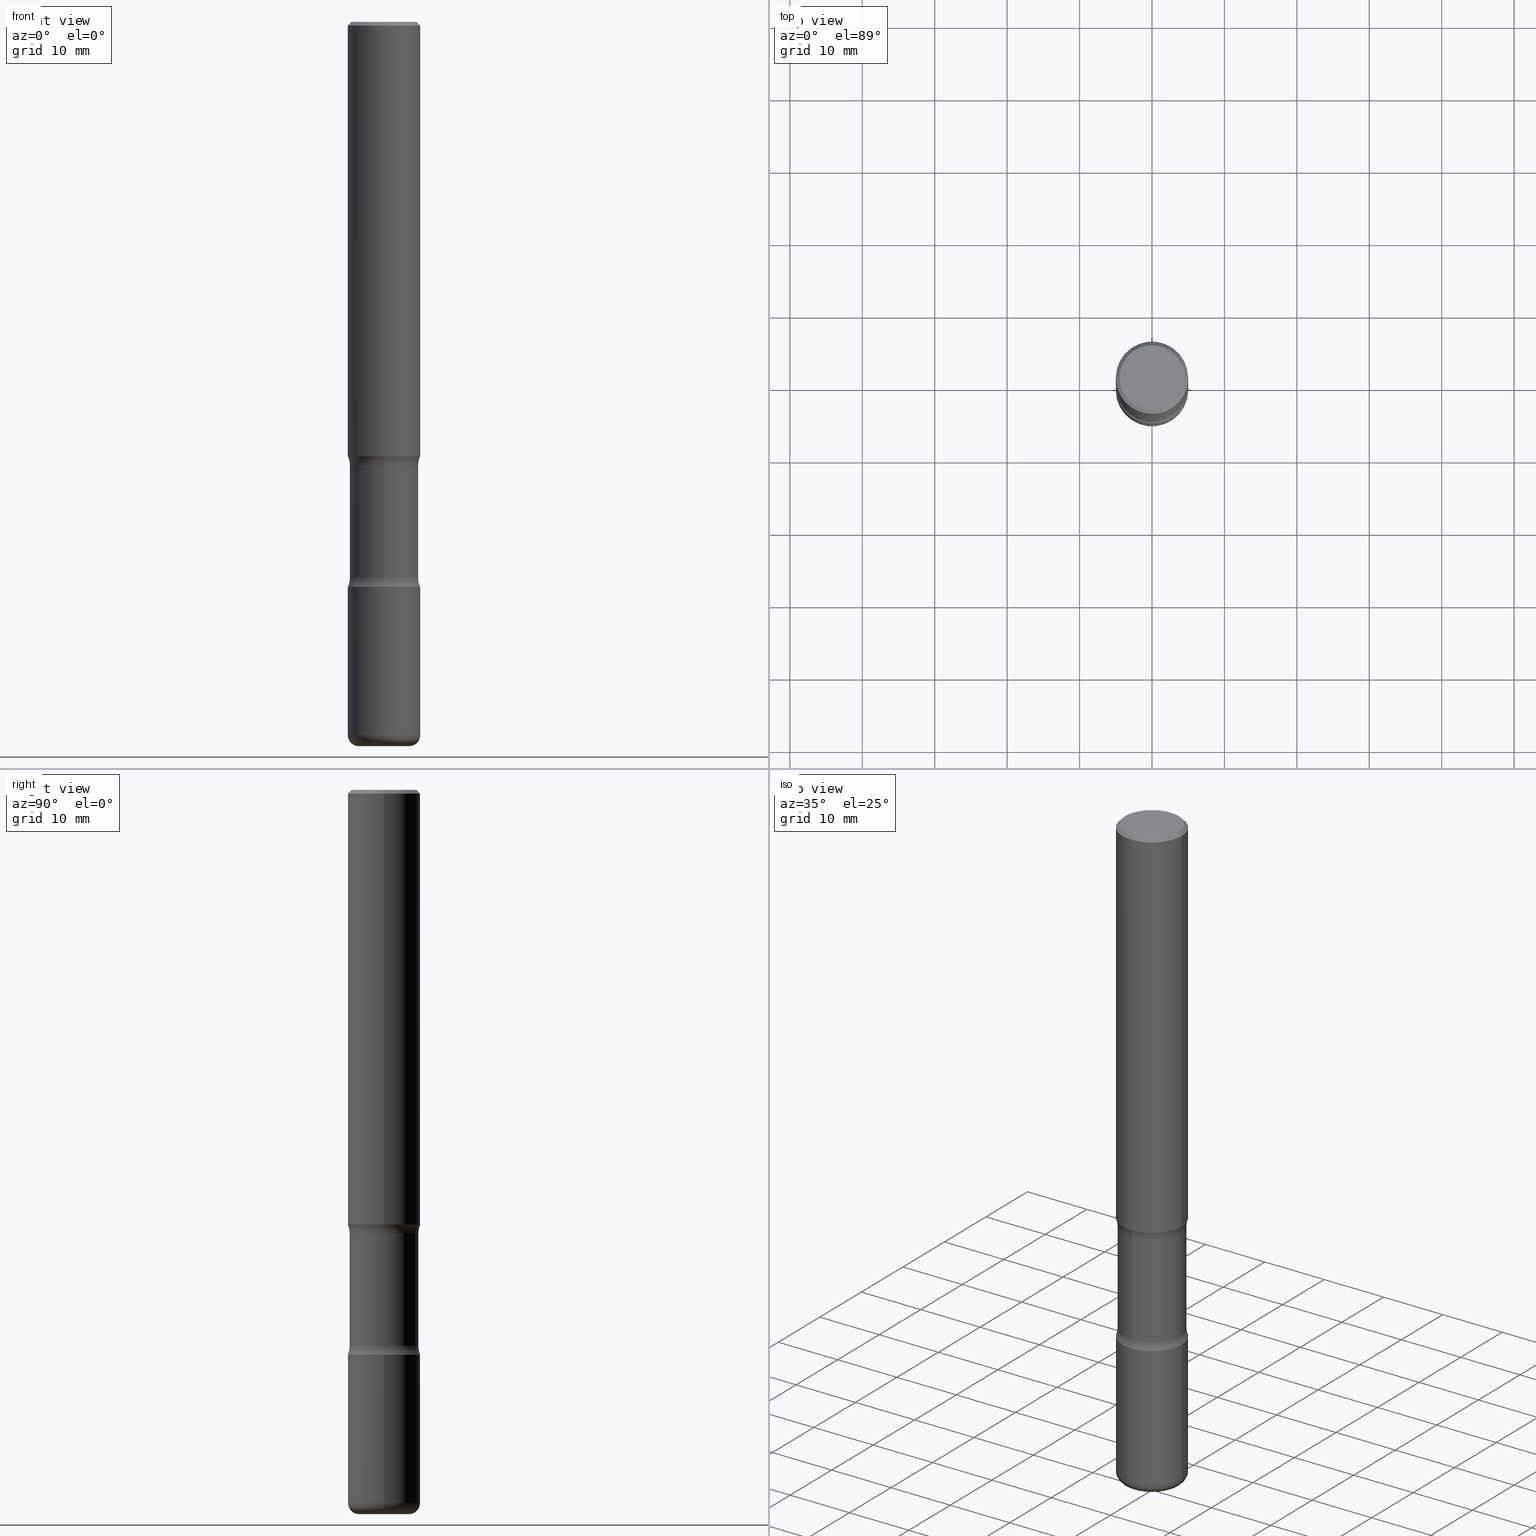
[diagram: canonical four-view strip — front | top / right | iso, engineering-drawing reading convention]
A machine part, canonical four-view strip (front | top / right | iso — engineering-drawing reading convention). The complete STEP part file that produces these views, byte-faithful:
ISO-10303-21;
HEADER;
FILE_DESCRIPTION (( 'STEP AP203' ),
    '1' );
FILE_NAME ('47676.STEP',
    '2024-03-02T06:57:43',
    ( '' ),
    ( '' ),
    'SwSTEP 2.0',
    'SolidWorks 2023',
    '' );
FILE_SCHEMA (( 'CONFIG_CONTROL_DESIGN' ));
ENDSEC;

DATA;
#1 = AXIS2_PLACEMENT_3D ( 'NONE', #329, #500, #114 ) ;
#2 = ORIENTED_EDGE ( 'NONE', *, *, #272, .T. ) ;
#3 = DIRECTION ( 'NONE',  ( -2.445468806185136597E-29, 3.491481338843145583E-15, 1.000000000000000000 ) ) ;
#4 = CARTESIAN_POINT ( 'NONE',  ( 5.776686413970529753E-29, -8.247577218615279626E-15, -2.362200000000000077 ) ) ;
#5 = EDGE_CURVE ( 'NONE', #274, #506, #523, .T. ) ;
#6 = EDGE_CURVE ( 'NONE', #375, #53, #462, .T. ) ;
#7 = DIRECTION ( 'NONE',  ( 1.000000000000000000, -6.982962677686266711E-15, 0.000000000000000000 ) ) ;
#8 = DIRECTION ( 'NONE',  ( -2.438088387897960049E-29, 3.491481338843145188E-15, 1.000000000000000000 ) ) ;
#9 = CLOSED_SHELL ( 'NONE', ( #62, #443, #92, #513, #413, #535 ) ) ;
#10 = DIRECTION ( 'NONE',  ( 6.982962677686265133E-15, 1.000000000000000000, -2.775563112689113934E-15 ) ) ;
#11 = CIRCLE ( 'NONE', #447, 0.1870000000000000551 ) ;
#12 = APPROVAL_PERSON_ORGANIZATION ( #140, #280, #448 ) ;
#13 = PRODUCT_DEFINITION ( 'UNKNOWN', '', #554, #189 ) ;
#14 = DIRECTION ( 'NONE',  ( 6.982962677686265922E-15, 1.000000000000000000, -3.355209467880745729E-15 ) ) ;
#15 = FACE_OUTER_BOUND ( 'NONE', #156, .T. ) ;
#16 = CARTESIAN_POINT ( 'NONE',  ( 1.374596203102600378E-15, 0.1968499999999919758, -2.362200000000000966 ) ) ;
#17 = APPROVAL_ROLE ( '' ) ;
#18 = CARTESIAN_POINT ( 'NONE',  ( -0.1377500000000003166, -1.245405076053599742E-14, -3.937000000000000277 ) ) ;
#19 = ADVANCED_FACE ( 'NONE', ( #236 ), #289, .F. ) ;
#20 = CIRCLE ( 'NONE', #93, 0.05910000000000024956 ) ;
#21 = AXIS2_PLACEMENT_3D ( 'NONE', #71, #155, #542 ) ;
#22 = EDGE_LOOP ( 'NONE', ( #426, #2, #556, #179 ) ) ;
#23 = DIRECTION ( 'NONE',  ( -1.000000000000000000, 7.105427357600995548E-15, 0.000000000000000000 ) ) ;
#24 = TOROIDAL_SURFACE ( 'NONE', #164, 0.1377500000000003166, 0.05910000000000024262 ) ;
#25 = ORIENTED_EDGE ( 'NONE', *, *, #334, .F. ) ;
#26 = EDGE_CURVE ( 'NONE', #185, #134, #362, .T. ) ;
#27 = PERSON_AND_ORGANIZATION ( #262, #240 ) ;
#28 = EDGE_CURVE ( 'NONE', #167, #265, #44, .T. ) ;
#29 = DIRECTION ( 'NONE',  ( -2.445468806185136597E-29, 3.491481338843145583E-15, 1.000000000000000000 ) ) ;
#30 = APPROVAL_STATUS ( 'not_yet_approved' ) ;
#31 = EDGE_CURVE ( 'NONE', #559, #393, #158, .T. ) ;
#32 = FACE_OUTER_BOUND ( 'NONE', #392, .T. ) ;
#33 = AXIS2_PLACEMENT_3D ( 'NONE', #99, #501, #354 ) ;
#34 = AXIS2_PLACEMENT_3D ( 'NONE', #514, #125, #350 ) ;
#35 = ADVANCED_FACE ( 'NONE', ( #273 ), #324, .F. ) ;
#36 = CARTESIAN_POINT ( 'NONE',  ( 0.1968499999999999417, -1.420318657638188727E-15, -0.02000000000000006981 ) ) ;
#37 = CIRCLE ( 'NONE', #432, 0.1968499999999999417 ) ;
#38 = ORIENTED_EDGE ( 'NONE', *, *, #5, .T. ) ;
#39 = ORIENTED_EDGE ( 'NONE', *, *, #492, .T. ) ;
#40 = CARTESIAN_POINT ( 'NONE',  ( -0.1968499999999999417, 1.304766576325678113E-15, -0.02000000000000006981 ) ) ;
#41 = ADVANCED_FACE ( 'NONE', ( #63 ), #531, .F. ) ;
#42 = FACE_OUTER_BOUND ( 'NONE', #175, .T. ) ;
#43 = EDGE_CURVE ( 'NONE', #274, #53, #230, .T. ) ;
#44 = CIRCLE ( 'NONE', #110, 0.1768499999999998962 ) ;
#45 = EDGE_CURVE ( 'NONE', #264, #304, #255, .T. ) ;
#46 = VECTOR ( 'NONE', #379, 39.37007874015748143 ) ;
#47 = LINE ( 'NONE', #390, #152 ) ;
#48 = ORIENTED_EDGE ( 'NONE', *, *, #450, .T. ) ;
#49 = CC_DESIGN_SECURITY_CLASSIFICATION ( #378, ( #554 ) ) ;
#50 = CARTESIAN_POINT ( 'NONE',  ( 0.1968499999999999417, -1.420318657638188727E-15, -0.02000000000000006981 ) ) ;
#51 = ORIENTED_EDGE ( 'NONE', *, *, #315, .T. ) ;
#52 = CARTESIAN_POINT ( 'NONE',  ( -2.140475375304643950E-15, -0.3120000000000106577, -3.022263825191529474 ) ) ;
#53 = VERTEX_POINT ( 'NONE', #356 ) ;
#54 = ORIENTED_EDGE ( 'NONE', *, *, #492, .F. ) ;
#55 = ORIENTED_EDGE ( 'NONE', *, *, #541, .F. ) ;
#56 = AXIS2_PLACEMENT_3D ( 'NONE', #398, #410, #316 ) ;
#57 = VECTOR ( 'NONE', #79, 39.37007874015748143 ) ;
#58 =( NAMED_UNIT ( * ) SI_UNIT ( $, .STERADIAN. ) SOLID_ANGLE_UNIT ( ) );
#59 = PLANE ( 'NONE',  #229 ) ;
#60 = CARTESIAN_POINT ( 'NONE',  ( 4.890937612370289799E-31, -6.982962677686315028E-17, -0.02000000000000006981 ) ) ;
#61 = DIRECTION ( 'NONE',  ( 1.000000000000000000, -6.982962677686266711E-15, 4.876176775795935793E-29 ) ) ;
#62 = ADVANCED_FACE ( 'NONE', ( #525 ), #487, .T. ) ;
#63 = FACE_OUTER_BOUND ( 'NONE', #294, .T. ) ;
#64 = ORIENTED_EDGE ( 'NONE', *, *, #206, .F. ) ;
#65 = CIRCLE ( 'NONE', #415, 0.1250000000000000278 ) ;
#66 = CALENDAR_DATE ( 2024, 2, 3 ) ;
#67 = ORIENTED_EDGE ( 'NONE', *, *, #419, .F. ) ;
#68 = DIRECTION ( 'NONE',  ( 1.000000000000000000, -6.982962677686266711E-15, 4.876176775795935793E-29 ) ) ;
#69 = FACE_OUTER_BOUND ( 'NONE', #345, .T. ) ;
#70 = APPROVAL_DATE_TIME ( #293, #353 ) ;
#71 = CARTESIAN_POINT ( 'NONE',  ( 5.709247840935720689E-29, -8.344153093566332027E-15, -2.362200000000000077 ) ) ;
#72 = ADVANCED_FACE ( 'NONE', ( #184 ), #118, .F. ) ;
#73 = AXIS2_PLACEMENT_3D ( 'NONE', #373, #237, #247 ) ;
#74 = LOCAL_TIME ( 1, 57, 43.00000000000000000, #536 ) ;
#75 = FACE_OUTER_BOUND ( 'NONE', #243, .T. ) ;
#76 = SHAPE_DEFINITION_REPRESENTATION ( #180, #197 ) ;
#77 = DIRECTION ( 'NONE',  ( 6.982962677686266711E-15, 1.000000000000000000, -2.921762560068729017E-15 ) ) ;
#78 = CC_DESIGN_DATE_AND_TIME_ASSIGNMENT ( #136, #318, ( #13 ) ) ;
#79 = DIRECTION ( 'NONE',  ( -2.445468806185136877E-29, 3.491481338843145188E-15, 1.000000000000000000 ) ) ;
#80 = CIRCLE ( 'NONE', #112, 0.1377500000000003166 ) ;
#81 = DIRECTION ( 'NONE',  ( -2.445468806185136597E-29, 3.491481338843145583E-15, 1.000000000000000000 ) ) ;
#82 = ORIENTED_EDGE ( 'NONE', *, *, #6, .F. ) ;
#83 = CARTESIAN_POINT ( 'NONE',  ( 0.1968500000000000527, -1.374596203102542003E-15, 9.598753983154302260E-30 ) ) ;
#84 = CARTESIAN_POINT ( 'NONE',  ( 1.374596203102617931E-15, 0.1968499999999894223, -3.070900000000000851 ) ) ;
#85 = CIRCLE ( 'NONE', #491, 0.05910000000000024956 ) ;
#86 = DIRECTION ( 'NONE',  ( -0.7071067811865472397, 2.468850131082253905E-15, -0.7071067811865477948 ) ) ;
#87 = LOCAL_TIME ( 1, 57, 43.00000000000000000, #420 ) ;
#88 = DIRECTION ( 'NONE',  ( 1.000000000000000000, -6.982962677686266711E-15, 4.876176775795935793E-29 ) ) ;
#89 = EDGE_LOOP ( 'NONE', ( #338, #130, #223, #553 ) ) ;
#90 = CC_DESIGN_PERSON_AND_ORGANIZATION_ASSIGNMENT ( #290, #451, ( #378 ) ) ;
#91 = DIRECTION ( 'NONE',  ( 0.000000000000000000, 0.000000000000000000, 1.000000000000000000 ) ) ;
#92 = ADVANCED_FACE ( 'NONE', ( #178 ), #59, .T. ) ;
#93 = AXIS2_PLACEMENT_3D ( 'NONE', #428, #348, #163 ) ;
#94 = DIRECTION ( 'NONE',  ( 2.540626945080028130E-29, -3.355209467880746123E-15, -1.000000000000000000 ) ) ;
#95 = ORIENTED_EDGE ( 'NONE', *, *, #530, .F. ) ;
#96 = FACE_OUTER_BOUND ( 'NONE', #269, .T. ) ;
#97 = CARTESIAN_POINT ( 'NONE',  ( 0.000000000000000000, 0.000000000000000000, 0.000000000000000000 ) ) ;
#98 = CARTESIAN_POINT ( 'NONE',  ( -1.350489030861251670E-15, -0.1968500000000109051, -3.070899999999999963 ) ) ;
#99 = CARTESIAN_POINT ( 'NONE',  ( 7.509790156913936305E-29, -1.072199004345341739E-14, -3.070900000000000407 ) ) ;
#100 = FACE_OUTER_BOUND ( 'NONE', #128, .T. ) ;
#101 = AXIS2_PLACEMENT_3D ( 'NONE', #108, #400, #532 ) ;
#102 = PERSON_AND_ORGANIZATION ( #262, #240 ) ;
#103 = DIRECTION ( 'NONE',  ( -2.445468806185136597E-29, 3.491481338843145583E-15, 1.000000000000000000 ) ) ;
#104 = CIRCLE ( 'NONE', #144, 0.1968500000000001082 ) ;
#105 = DIRECTION ( 'NONE',  ( 6.982962677686265922E-15, 1.000000000000000000, -3.355209467880746123E-15 ) ) ;
#106 = EDGE_CURVE ( 'NONE', #53, #375, #181, .T. ) ;
#107 = LINE ( 'NONE', #200, #46 ) ;
#108 = CARTESIAN_POINT ( 'NONE',  ( 7.390851908567657271E-29, -1.055217774671693035E-14, -3.022263825191530362 ) ) ;
#109 = APPROVAL_ROLE ( '' ) ;
#110 = AXIS2_PLACEMENT_3D ( 'NONE', #138, #133, #445 ) ;
#111 = DIRECTION ( 'NONE',  ( -6.982962677686264344E-15, -1.000000000000000000, 0.000000000000000000 ) ) ;
#112 = AXIS2_PLACEMENT_3D ( 'NONE', #333, #494, #546 ) ;
#113 = TOROIDAL_SURFACE ( 'NONE', #517, 0.3120000000000001106, 0.1250000000000000833 ) ;
#114 = DIRECTION ( 'NONE',  ( 6.982962677686266711E-15, 1.000000000000000000, -2.921762560068729411E-15 ) ) ;
#115 = ADVANCED_FACE ( 'NONE', ( #365 ), #222, .F. ) ;
#116 = CARTESIAN_POINT ( 'NONE',  ( -0.1768499999999998962, 1.269851762937246858E-15, 4.268512490091652920E-18 ) ) ;
#117 = CARTESIAN_POINT ( 'NONE',  ( -0.1968500000000001360, -2.760000047352310125E-15, -2.362200000000000077 ) ) ;
#118 = TOROIDAL_SURFACE ( 'NONE', #508, 0.3120000000000000551, 0.1250000000000000278 ) ;
#119 = ORIENTED_EDGE ( 'NONE', *, *, #28, .F. ) ;
#120 = AXIS2_PLACEMENT_3D ( 'NONE', #560, #382, #344 ) ;
#121 = CARTESIAN_POINT ( 'NONE',  ( 1.305814020727390771E-15, 0.1869999999999916174, -2.410836174808470567 ) ) ;
#122 = LOCAL_TIME ( 1, 57, 43.00000000000000000, #539 ) ;
#123 = ADVANCED_FACE ( 'NONE', ( #100 ), #174, .T. ) ;
#124 = DIRECTION ( 'NONE',  ( -2.445468806185136597E-29, 3.491481338843145583E-15, 1.000000000000000000 ) ) ;
#125 = DIRECTION ( 'NONE',  ( 2.540626945080028130E-29, -3.355209467880746123E-15, -1.000000000000000000 ) ) ;
#126 = VECTOR ( 'NONE', #369, 39.37007874015748143 ) ;
#127 = DIRECTION ( 'NONE',  ( 1.000000000000000000, -6.982962677686266711E-15, 4.876176775795935793E-29 ) ) ;
#128 = EDGE_LOOP ( 'NONE', ( #268, #519, #385, #95 ) ) ;
#129 = APPROVAL ( #275, 'UNSPECIFIED' ) ;
#130 = ORIENTED_EDGE ( 'NONE', *, *, #214, .T. ) ;
#131 = FACE_OUTER_BOUND ( 'NONE', #22, .T. ) ;
#132 = CARTESIAN_POINT ( 'NONE',  ( 9.483283483505340095E-29, -1.353961548389983302E-14, -3.877899999999999459 ) ) ;
#133 = DIRECTION ( 'NONE',  ( -2.445468806185136597E-29, 3.491481338843145583E-15, 1.000000000000000000 ) ) ;
#134 = VERTEX_POINT ( 'NONE', #449 ) ;
#135 = CC_DESIGN_PERSON_AND_ORGANIZATION_ASSIGNMENT ( #233, #364, ( #13 ) ) ;
#136 = DATE_AND_TIME ( #439, #74 ) ;
#137 = CIRCLE ( 'NONE', #424, 0.1768499999999998962 ) ;
#138 = CARTESIAN_POINT ( 'NONE',  ( -1.043851414335219820E-46, 1.490343170380447200E-32, 4.268512490100411279E-18 ) ) ;
#139 = EDGE_LOOP ( 'NONE', ( #159, #310, #495, #67 ) ) ;
#140 = PERSON_AND_ORGANIZATION ( #262, #240 ) ;
#141 = CARTESIAN_POINT ( 'NONE',  ( -1.282913125583179628E-15, -0.1870000000000137108, -3.936999999999999389 ) ) ;
#142 = DIRECTION ( 'NONE',  ( -2.540626945080027570E-29, 3.355209467880745729E-15, 1.000000000000000000 ) ) ;
#143 = DIRECTION ( 'NONE',  ( 6.982962677686265133E-15, 1.000000000000000000, -2.775563112689113934E-15 ) ) ;
#144 = AXIS2_PLACEMENT_3D ( 'NONE', #195, #29, #545 ) ;
#145 = APPROVAL_DATE_TIME ( #241, #129 ) ;
#146 = CYLINDRICAL_SURFACE ( 'NONE', #311, 0.1870000000000000828 ) ;
#147 = CARTESIAN_POINT ( 'NONE',  ( -0.1377500000000003166, -1.256084286539029315E-14, -3.877899999999999459 ) ) ;
#148 = VERTEX_POINT ( 'NONE', #16 ) ;
#149 = EDGE_CURVE ( 'NONE', #393, #559, #550, .T. ) ;
#150 = DIRECTION ( 'NONE',  ( 2.540626945080028130E-29, -3.355209467880746123E-15, -1.000000000000000000 ) ) ;
#151 = AXIS2_PLACEMENT_3D ( 'NONE', #209, #380, #339 ) ;
#152 = VECTOR ( 'NONE', #86, 39.37007874015748143 ) ;
#153 = DIRECTION ( 'NONE',  ( 6.982962677686265922E-15, 1.000000000000000000, -3.355209467880746123E-15 ) ) ;
#154 = ORIENTED_EDGE ( 'NONE', *, *, #31, .T. ) ;
#155 = DIRECTION ( 'NONE',  ( 2.540626945080028130E-29, -3.355209467880746123E-15, -1.000000000000000000 ) ) ;
#156 = EDGE_LOOP ( 'NONE', ( #475, #340 ) ) ;
#157 = DIRECTION ( 'NONE',  ( 6.982962677686266711E-15, 1.000000000000000000, -2.921762560068729806E-15 ) ) ;
#158 = CIRCLE ( 'NONE', #488, 0.1968500000000001915 ) ;
#159 = ORIENTED_EDGE ( 'NONE', *, *, #31, .F. ) ;
#160 = VERTEX_POINT ( 'NONE', #182 ) ;
#161 = EDGE_CURVE ( 'NONE', #469, #185, #162, .T. ) ;
#162 = CIRCLE ( 'NONE', #538, 0.1870000000000001106 ) ;
#163 = DIRECTION ( 'NONE',  ( 1.000000000000000000, -6.982962677686265922E-15, 0.000000000000000000 ) ) ;
#164 = AXIS2_PLACEMENT_3D ( 'NONE', #463, #81, #427 ) ;
#165 = ORIENTED_EDGE ( 'NONE', *, *, #512, .T. ) ;
#166 = CARTESIAN_POINT ( 'NONE',  ( 7.386223780689915972E-29, -1.055880548925453445E-14, -3.022263825191530362 ) ) ;
#167 = VERTEX_POINT ( 'NONE', #116 ) ;
#168 = CARTESIAN_POINT ( 'NONE',  ( -2.140475375304660122E-15, -0.3120000000000086038, -2.410836174808469234 ) ) ;
#169 = EDGE_CURVE ( 'NONE', #304, #264, #104, .T. ) ;
#170 = AXIS2_PLACEMENT_3D ( 'NONE', #227, #537, #10 ) ;
#171 = APPLICATION_CONTEXT ( 'configuration controlled 3d designs of mechanical parts and assemblies' ) ;
#172 = ORIENTED_EDGE ( 'NONE', *, *, #256, .F. ) ;
#173 =( NAMED_UNIT ( * ) PLANE_ANGLE_UNIT ( ) SI_UNIT ( $, .RADIAN. ) );
#174 = CYLINDRICAL_SURFACE ( 'NONE', #270, 0.1968500000000000527 ) ;
#175 = EDGE_LOOP ( 'NONE', ( #253, #38, #325, #480 ) ) ;
#176 = ORIENTED_EDGE ( 'NONE', *, *, #169, .T. ) ;
#177 = APPLICATION_PROTOCOL_DEFINITION ( 'international standard', 'config_control_design', 1994, #534 ) ;
#178 = FACE_OUTER_BOUND ( 'NONE', #279, .T. ) ;
#179 = ORIENTED_EDGE ( 'NONE', *, *, #5, .F. ) ;
#180 = PRODUCT_DEFINITION_SHAPE ( 'NONE', 'NONE',  #13 ) ;
#181 = CIRCLE ( 'NONE', #292, 0.1968500000000001915 ) ;
#182 = CARTESIAN_POINT ( 'NONE',  ( 0.1377500000000003166, -1.470786513987674896E-14, -3.937000000000000277 ) ) ;
#183 = CIRCLE ( 'NONE', #194, 0.1968500000000002748 ) ;
#184 = FACE_OUTER_BOUND ( 'NONE', #139, .T. ) ;
#185 = VERTEX_POINT ( 'NONE', #454 ) ;
#186 = DIRECTION ( 'NONE',  ( 6.982962677686265922E-15, 1.000000000000000000, -3.355209467880746123E-15 ) ) ;
#187 = DIRECTION ( 'NONE',  ( 1.000000000000000000, -6.982962677686272233E-15, 0.000000000000000000 ) ) ;
#188 = EDGE_CURVE ( 'NONE', #357, #148, #317, .T. ) ;
#189 = DESIGN_CONTEXT ( 'detailed design', #534, 'design' ) ;
#190 = VERTEX_POINT ( 'NONE', #242 ) ;
#191 = PLANE ( 'NONE',  #73 ) ;
#192 = VECTOR ( 'NONE', #252, 39.37007874015748143 ) ;
#193 = EDGE_LOOP ( 'NONE', ( #54, #363, #397, #381 ) ) ;
#194 = AXIS2_PLACEMENT_3D ( 'NONE', #388, #518, #249 ) ;
#195 = CARTESIAN_POINT ( 'NONE',  ( 5.776686413970529753E-29, -8.247577218615279626E-15, -2.362200000000000077 ) ) ;
#196 = ADVANCED_FACE ( 'NONE', ( #461 ), #210, .T. ) ;
#197 = ADVANCED_BREP_SHAPE_REPRESENTATION ( '47676', ( #330, #347, #528, #259 ), #212 ) ;
#198 = DIRECTION ( 'NONE',  ( -1.000000000000000000, 6.982962677686265922E-15, -4.883557194083112901E-29 ) ) ;
#199 = PERSON_AND_ORGANIZATION ( #262, #240 ) ;
#200 = CARTESIAN_POINT ( 'NONE',  ( 1.305814020727429425E-15, 0.1869999999999864548, -3.937000000000000721 ) ) ;
#201 = CIRCLE ( 'NONE', #349, 0.1250000000000001110 ) ;
#202 = CALENDAR_DATE ( 2024, 2, 3 ) ;
#203 = AXIS2_PLACEMENT_3D ( 'NONE', #267, #478, #444 ) ;
#204 = DIRECTION ( 'NONE',  ( 6.982962677686266711E-15, 1.000000000000000000, -2.921762560068729017E-15 ) ) ;
#205 = DIRECTION ( 'NONE',  ( -2.445468806185136597E-29, 3.491481338843145583E-15, 1.000000000000000000 ) ) ;
#206 = EDGE_CURVE ( 'NONE', #469, #148, #481, .T. ) ;
#207 = ORIENTED_EDGE ( 'NONE', *, *, #206, .T. ) ;
#208 = ORIENTED_EDGE ( 'NONE', *, *, #169, .F. ) ;
#209 = CARTESIAN_POINT ( 'NONE',  ( 4.890937612370289799E-31, -6.982962677686315028E-17, -0.02000000000000006981 ) ) ;
#210 = CONICAL_SURFACE ( 'NONE', #527, 0.1968499999999999417, 0.7853981633974479459 ) ;
#211 = CARTESIAN_POINT ( 'NONE',  ( 0.1968500000000004690, -1.491421168700237936E-14, -3.877899999999999459 ) ) ;
#212 =( GEOMETRIC_REPRESENTATION_CONTEXT ( 3 ) GLOBAL_UNCERTAINTY_ASSIGNED_CONTEXT ( ( #422 ) ) GLOBAL_UNIT_ASSIGNED_CONTEXT ( ( #441, #173, #58 ) ) REPRESENTATION_CONTEXT ( 'NONE', 'WORKASPACE' ) );
#213 = DIRECTION ( 'NONE',  ( 1.000000000000000000, -6.982962677686266711E-15, 0.000000000000000000 ) ) ;
#214 = EDGE_CURVE ( 'NONE', #307, #274, #85, .T. ) ;
#215 = DIRECTION ( 'NONE',  ( 6.860497997771529985E-15, 1.000000000000000000, 0.000000000000000000 ) ) ;
#216 = ORIENTED_EDGE ( 'NONE', *, *, #450, .F. ) ;
#217 = FACE_OUTER_BOUND ( 'NONE', #193, .T. ) ;
#218 = AXIS2_PLACEMENT_3D ( 'NONE', #295, #460, #77 ) ;
#219 =( LENGTH_UNIT ( ) NAMED_UNIT ( * ) SI_UNIT ( $, .METRE. ) );
#220 = DIRECTION ( 'NONE',  ( 2.540626945080028130E-29, -3.355209467880745729E-15, -1.000000000000000000 ) ) ;
#221 = DIRECTION ( 'NONE',  ( 1.000000000000000000, -6.982962677686266711E-15, 0.000000000000000000 ) ) ;
#222 = PLANE ( 'NONE',  #358 ) ;
#223 = ORIENTED_EDGE ( 'NONE', *, *, #533, .F. ) ;
#224 = ORIENTED_EDGE ( 'NONE', *, *, #45, .F. ) ;
#225 = ADVANCED_FACE ( 'NONE', ( #32 ), #146, .T. ) ;
#226 = CARTESIAN_POINT ( 'NONE',  ( 5.847933680864636237E-29, -8.485685715193371918E-15, -2.410836174808470123 ) ) ;
#227 = CARTESIAN_POINT ( 'NONE',  ( 7.509790156913936305E-29, -1.072199004345341739E-14, -3.070900000000000407 ) ) ;
#228 = PLANE ( 'NONE',  #203 ) ;
#229 = AXIS2_PLACEMENT_3D ( 'NONE', #521, #485, #285 ) ;
#230 = LINE ( 'NONE', #283, #299 ) ;
#231 = ORIENTED_EDGE ( 'NONE', *, *, #26, .T. ) ;
#232 = ADVANCED_FACE ( 'NONE', ( #371 ), #337, .T. ) ;
#233 = PERSON_AND_ORGANIZATION ( #262, #240 ) ;
#234 = DIRECTION ( 'NONE',  ( 2.540626945080028130E-29, -3.355209467880746123E-15, -1.000000000000000000 ) ) ;
#235 = ORIENTED_EDGE ( 'NONE', *, *, #188, .F. ) ;
#236 = FACE_OUTER_BOUND ( 'NONE', #368, .T. ) ;
#237 = DIRECTION ( 'NONE',  ( 2.438088387897960049E-29, -3.491481338843145188E-15, -1.000000000000000000 ) ) ;
#238 = DIRECTION ( 'NONE',  ( 2.540626945080028130E-29, -3.355209467880746123E-15, -1.000000000000000000 ) ) ;
#239 = APPROVAL_PERSON_ORGANIZATION ( #199, #353, #17 ) ;
#240 = ORGANIZATION ( 'UNSPECIFIED', 'UNSPECIFIED', '' ) ;
#241 = DATE_AND_TIME ( #202, #87 ) ;
#242 = CARTESIAN_POINT ( 'NONE',  ( 1.305814020727405957E-15, 0.1869999999999895079, -3.022263825191530806 ) ) ;
#243 = EDGE_LOOP ( 'NONE', ( #25, #48, #407, #64 ) ) ;
#244 = PERSON_AND_ORGANIZATION ( #262, #240 ) ;
#245 = LINE ( 'NONE', #296, #57 ) ;
#246 = CALENDAR_DATE ( 2024, 2, 3 ) ;
#247 = DIRECTION ( 'NONE',  ( -1.000000000000000000, 6.982962677686265922E-15, -4.876176775795935793E-29 ) ) ;
#248 = ORIENTED_EDGE ( 'NONE', *, *, #336, .F. ) ;
#249 = DIRECTION ( 'NONE',  ( 6.982962677686265922E-15, 1.000000000000000000, -2.775563112689112751E-15 ) ) ;
#250 = ORIENTED_EDGE ( 'NONE', *, *, #419, .T. ) ;
#251 = ORIENTED_EDGE ( 'NONE', *, *, #505, .T. ) ;
#252 = DIRECTION ( 'NONE',  ( -2.445468806185136877E-29, 3.491481338843145188E-15, 1.000000000000000000 ) ) ;
#253 = ORIENTED_EDGE ( 'NONE', *, *, #43, .F. ) ;
#254 = CARTESIAN_POINT ( 'NONE',  ( 0.000000000000000000, 0.000000000000000000, 0.000000000000000000 ) ) ;
#255 = CIRCLE ( 'NONE', #56, 0.1968500000000001082 ) ;
#256 = EDGE_CURVE ( 'NONE', #469, #190, #107, .T. ) ;
#257 = CIRCLE ( 'NONE', #120, 0.1250000000000000278 ) ;
#258 = CARTESIAN_POINT ( 'NONE',  ( 4.890937612370289799E-31, -6.982962677686315028E-17, -0.02000000000000006981 ) ) ;
#259 = AXIS2_PLACEMENT_3D ( 'NONE', #520, #91, #396 ) ;
#260 = ORIENTED_EDGE ( 'NONE', *, *, #28, .T. ) ;
#261 = EDGE_LOOP ( 'NONE', ( #297, #231, #372, #172 ) ) ;
#262 = PERSON ( 'UNSPECIFIED', 'UNSPECIFIED', 'UNSPECIFIED', ('UNSPECIFIED'), ('UNSPECIFIED'), ('UNSPECIFIED') ) ;
#263 = DIRECTION ( 'NONE',  ( 0.7071067811865472397, -7.319954787623254468E-15, -0.7071067811865477948 ) ) ;
#264 = VERTEX_POINT ( 'NONE', #117 ) ;
#265 = VERTEX_POINT ( 'NONE', #544 ) ;
#266 = ORIENTED_EDGE ( 'NONE', *, *, #43, .T. ) ;
#267 = CARTESIAN_POINT ( 'NONE',  ( 7.509790156913936305E-29, -1.072199004345341739E-14, -3.070900000000000407 ) ) ;
#268 = ORIENTED_EDGE ( 'NONE', *, *, #315, .F. ) ;
#269 = EDGE_LOOP ( 'NONE', ( #216, #286, #207, #165 ) ) ;
#270 = AXIS2_PLACEMENT_3D ( 'NONE', #97, #276, #61 ) ;
#271 = APPLICATION_PROTOCOL_DEFINITION ( 'international standard', 'config_control_design', 1994, #171 ) ;
#272 = EDGE_CURVE ( 'NONE', #307, #160, #80, .T. ) ;
#273 = FACE_OUTER_BOUND ( 'NONE', #503, .T. ) ;
#274 = VERTEX_POINT ( 'NONE', #300 ) ;
#275 = APPROVAL_STATUS ( 'not_yet_approved' ) ;
#276 = DIRECTION ( 'NONE',  ( -2.445468806185136597E-29, 3.491481338843145583E-15, 1.000000000000000000 ) ) ;
#277 = LENGTH_MEASURE_WITH_UNIT ( LENGTH_MEASURE( 0.02539999999999999897 ), #219 );
#278 = CARTESIAN_POINT ( 'NONE',  ( 5.832814217159742143E-29, -8.507337647765213396E-15, -2.410836174808470123 ) ) ;
#279 = EDGE_LOOP ( 'NONE', ( #552, #408 ) ) ;
#280 = APPROVAL ( #476, 'UNSPECIFIED' ) ;
#281 = ORIENTED_EDGE ( 'NONE', *, *, #435, .T. ) ;
#282 = PERSON_AND_ORGANIZATION_ROLE ( 'design_owner' ) ;
#283 = CARTESIAN_POINT ( 'NONE',  ( -0.1968500000000002470, 1.398703375343758971E-15, -9.682923725166793487E-30 ) ) ;
#284 = AXIS2_PLACEMENT_3D ( 'NONE', #60, #3, #7 ) ;
#285 = DIRECTION ( 'NONE',  ( -1.000000000000000000, 6.982962677686265922E-15, -4.876176775795935793E-29 ) ) ;
#286 = ORIENTED_EDGE ( 'NONE', *, *, #161, .F. ) ;
#287 = CALENDAR_DATE ( 2024, 2, 3 ) ;
#288 = CARTESIAN_POINT ( 'NONE',  ( 2.178684355438174110E-15, 0.3119999999999916729, -2.410836174808471011 ) ) ;
#289 = TOROIDAL_SURFACE ( 'NONE', #101, 0.3120000000000000551, 0.1250000000000000278 ) ;
#290 = PERSON_AND_ORGANIZATION ( #262, #240 ) ;
#291 = LINE ( 'NONE', #457, #126 ) ;
#292 = AXIS2_PLACEMENT_3D ( 'NONE', #442, #103, #187 ) ;
#293 = DATE_AND_TIME ( #246, #122 ) ;
#294 = EDGE_LOOP ( 'NONE', ( #509, #235 ) ) ;
#295 = CARTESIAN_POINT ( 'NONE',  ( 5.832814217159742143E-29, -8.507337647765213396E-15, -2.410836174808470123 ) ) ;
#296 = CARTESIAN_POINT ( 'NONE',  ( 0.1968500000000002470, -1.374596203102543383E-15, 9.598753983154312069E-30 ) ) ;
#297 = ORIENTED_EDGE ( 'NONE', *, *, #161, .T. ) ;
#298 = ADVANCED_FACE ( 'NONE', ( #69 ), #191, .F. ) ;
#299 = VECTOR ( 'NONE', #479, 39.37007874015748143 ) ;
#300 = CARTESIAN_POINT ( 'NONE',  ( -0.1968500000000004690, -1.214091210855607286E-14, -3.877899999999999459 ) ) ;
#301 = ORIENTED_EDGE ( 'NONE', *, *, #334, .T. ) ;
#302 = AXIS2_PLACEMENT_3D ( 'NONE', #288, #198, #111 ) ;
#303 = DIRECTION ( 'NONE',  ( 6.860497997771529196E-15, 1.000000000000000000, 0.000000000000000000 ) ) ;
#304 = VERTEX_POINT ( 'NONE', #496 ) ;
#305 = ORIENTED_EDGE ( 'NONE', *, *, #149, .T. ) ;
#306 = DIRECTION ( 'NONE',  ( 1.000000000000000000, -6.982962677686266711E-15, 4.875932113059880811E-29 ) ) ;
#307 = VERTEX_POINT ( 'NONE', #18 ) ;
#308 = DIRECTION ( 'NONE',  ( -2.445468806185136597E-29, 3.491481338843145583E-15, 1.000000000000000000 ) ) ;
#309 = VECTOR ( 'NONE', #220, 39.37007874015748143 ) ;
#310 = ORIENTED_EDGE ( 'NONE', *, *, #391, .T. ) ;
#311 = AXIS2_PLACEMENT_3D ( 'NONE', #504, #238, #416 ) ;
#312 = DIRECTION ( 'NONE',  ( -2.445468806185136597E-29, 3.491481338843145583E-15, 1.000000000000000000 ) ) ;
#313 = LOCAL_TIME ( 1, 57, 43.00000000000000000, #486 ) ;
#314 = DIRECTION ( 'NONE',  ( -2.445468806185136597E-29, 3.491481338843145583E-15, 1.000000000000000000 ) ) ;
#315 = EDGE_CURVE ( 'NONE', #264, #395, #291, .T. ) ;
#316 = DIRECTION ( 'NONE',  ( 1.000000000000000000, -6.982962677686265133E-15, 0.000000000000000000 ) ) ;
#317 = CIRCLE ( 'NONE', #21, 0.1968500000000002748 ) ;
#318 = DATE_TIME_ROLE ( 'creation_date' ) ;
#319 = DIRECTION ( 'NONE',  ( 1.000000000000000000, -6.982962677686265922E-15, 4.876176775795935793E-29 ) ) ;
#320 = CARTESIAN_POINT ( 'NONE',  ( 7.390851908567657271E-29, -1.055217774671693035E-14, -3.022263825191530362 ) ) ;
#321 = ADVANCED_FACE ( 'NONE', ( #75 ), #431, .F. ) ;
#322 = CARTESIAN_POINT ( 'NONE',  ( 7.509790156913936305E-29, -1.072199004345341739E-14, -3.070900000000000407 ) ) ;
#323 = DIRECTION ( 'NONE',  ( -2.445468806185136597E-29, 3.491481338843145583E-15, 1.000000000000000000 ) ) ;
#324 = PLANE ( 'NONE',  #497 ) ;
#325 = ORIENTED_EDGE ( 'NONE', *, *, #336, .T. ) ;
#326 = CC_DESIGN_APPROVAL ( #280, ( #13 ) ) ;
#327 = CARTESIAN_POINT ( 'NONE',  ( 4.890937612370289799E-31, -6.982962677686315028E-17, -0.02000000000000006981 ) ) ;
#328 = EDGE_CURVE ( 'NONE', #160, #307, #341, .T. ) ;
#329 = CARTESIAN_POINT ( 'NONE',  ( 9.710227154047748282E-29, -1.362793696358492956E-14, -3.937000000000000277 ) ) ;
#330 = MANIFOLD_SOLID_BREP ( 'Body-Move/Copy2[1]', #9 ) ;
#331 = DIRECTION ( 'NONE',  ( 1.000000000000000000, -6.982962677686269077E-15, 0.000000000000000000 ) ) ;
#332 = APPROVAL_PERSON_ORGANIZATION ( #482, #129, #109 ) ;
#333 = CARTESIAN_POINT ( 'NONE',  ( 9.627810689950883669E-29, -1.374596203102546341E-14, -3.937000000000000277 ) ) ;
#334 = EDGE_CURVE ( 'NONE', #185, #469, #499, .T. ) ;
#335 = ORIENTED_EDGE ( 'NONE', *, *, #472, .F. ) ;
#336 = EDGE_CURVE ( 'NONE', #506, #375, #245, .T. ) ;
#337 = CYLINDRICAL_SURFACE ( 'NONE', #1, 0.1870000000000000828 ) ;
#338 = ORIENTED_EDGE ( 'NONE', *, *, #328, .T. ) ;
#339 = DIRECTION ( 'NONE',  ( -1.000000000000000000, 6.982962677686266711E-15, 0.000000000000000000 ) ) ;
#340 = ORIENTED_EDGE ( 'NONE', *, *, #106, .T. ) ;
#341 = CIRCLE ( 'NONE', #464, 0.1377500000000003166 ) ;
#342 = PRODUCT_RELATED_PRODUCT_CATEGORY ( 'detail', '', ( #526 ) ) ;
#343 = DIRECTION ( 'NONE',  ( 1.000000000000000000, -6.860497997771530774E-15, 4.842467728730022328E-29 ) ) ;
#344 = DIRECTION ( 'NONE',  ( -6.982962677686265133E-15, -1.000000000000000000, 0.000000000000000000 ) ) ;
#345 = EDGE_LOOP ( 'NONE', ( #260, #39 ) ) ;
#346 = VERTEX_POINT ( 'NONE', #36 ) ;
#347 = MANIFOLD_SOLID_BREP ( 'Body-Move/Copy2[2]', #366 ) ;
#348 = DIRECTION ( 'NONE',  ( -6.982962677686266711E-15, -1.000000000000000000, 3.491481338843145583E-15 ) ) ;
#349 = AXIS2_PLACEMENT_3D ( 'NONE', #168, #343, #303 ) ;
#350 = DIRECTION ( 'NONE',  ( 6.982962677686266711E-15, 1.000000000000000000, -2.921762560068729806E-15 ) ) ;
#351 = ORIENTED_EDGE ( 'NONE', *, *, #359, .F. ) ;
#352 = ORIENTED_EDGE ( 'NONE', *, *, #26, .F. ) ;
#353 = APPROVAL ( #30, 'UNSPECIFIED' ) ;
#354 = DIRECTION ( 'NONE',  ( 1.000000000000000000, -6.982962677686272233E-15, 0.000000000000000000 ) ) ;
#355 = DATE_AND_TIME ( #66, #313 ) ;
#356 = CARTESIAN_POINT ( 'NONE',  ( -0.1968500000000001915, -1.073209938833286663E-14, -3.070900000000000407 ) ) ;
#357 = VERTEX_POINT ( 'NONE', #558 ) ;
#358 = AXIS2_PLACEMENT_3D ( 'NONE', #4, #8, #319 ) ;
#359 = EDGE_CURVE ( 'NONE', #134, #190, #367, .T. ) ;
#360 = DIRECTION ( 'NONE',  ( 2.540626945080028130E-29, -3.355209467880746123E-15, -1.000000000000000000 ) ) ;
#361 = DIRECTION ( 'NONE',  ( -6.982962677686265922E-15, -1.000000000000000000, 3.355209467880745729E-15 ) ) ;
#362 = LINE ( 'NONE', #141, #309 ) ;
#363 = ORIENTED_EDGE ( 'NONE', *, *, #374, .T. ) ;
#364 = PERSON_AND_ORGANIZATION_ROLE ( 'creator' ) ;
#365 = FACE_OUTER_BOUND ( 'NONE', #383, .T. ) ;
#366 = CLOSED_SHELL ( 'NONE', ( #458, #437, #196, #298, #115, #123 ) ) ;
#367 = CIRCLE ( 'NONE', #34, 0.1870000000000000551 ) ;
#368 = EDGE_LOOP ( 'NONE', ( #549, #401, #250, #281 ) ) ;
#369 = DIRECTION ( 'NONE',  ( -2.445468806185136877E-29, 3.491481338843145188E-15, 1.000000000000000000 ) ) ;
#370 = LOCAL_TIME ( 1, 57, 43.00000000000000000, #498 ) ;
#371 = FACE_OUTER_BOUND ( 'NONE', #261, .T. ) ;
#372 = ORIENTED_EDGE ( 'NONE', *, *, #435, .F. ) ;
#373 = CARTESIAN_POINT ( 'NONE',  ( 1.234936949548815209E-15, 0.1768499999999998962, -6.153342185293597578E-16 ) ) ;
#374 = EDGE_CURVE ( 'NONE', #265, #346, #548, .T. ) ;
#375 = VERTEX_POINT ( 'NONE', #466 ) ;
#376 = CARTESIAN_POINT ( 'NONE',  ( 5.847933680864636237E-29, -8.485685715193371918E-15, -2.410836174808470123 ) ) ;
#377 = AXIS2_PLACEMENT_3D ( 'NONE', #254, #205, #127 ) ;
#378 = SECURITY_CLASSIFICATION ( '', '', #417 ) ;
#379 = DIRECTION ( 'NONE',  ( 2.540626945080028130E-29, -3.355209467880745729E-15, -1.000000000000000000 ) ) ;
#380 = DIRECTION ( 'NONE',  ( 2.445468806185136597E-29, -3.491481338843145583E-15, -1.000000000000000000 ) ) ;
#381 = ORIENTED_EDGE ( 'NONE', *, *, #505, .F. ) ;
#382 = DIRECTION ( 'NONE',  ( -1.000000000000000000, 6.982962677686265922E-15, -4.883557194083112901E-29 ) ) ;
#383 = EDGE_LOOP ( 'NONE', ( #208, #224 ) ) ;
#384 = AXIS2_PLACEMENT_3D ( 'NONE', #389, #312, #551 ) ;
#385 = ORIENTED_EDGE ( 'NONE', *, *, #472, .T. ) ;
#386 = CC_DESIGN_PERSON_AND_ORGANIZATION_ASSIGNMENT ( #102, #282, ( #526 ) ) ;
#387 = CARTESIAN_POINT ( 'NONE',  ( 9.483283483505340095E-29, -1.353961548389983302E-14, -3.877899999999999459 ) ) ;
#388 = CARTESIAN_POINT ( 'NONE',  ( 5.709247840935720689E-29, -8.344153093566332027E-15, -2.362200000000000077 ) ) ;
#389 = CARTESIAN_POINT ( 'NONE',  ( 9.483283483505340095E-29, -1.353961548389983302E-14, -3.877899999999999459 ) ) ;
#390 = CARTESIAN_POINT ( 'NONE',  ( -0.1968499999999999417, 1.304766576325678113E-15, -0.02000000000000006981 ) ) ;
#391 = EDGE_CURVE ( 'NONE', #559, #134, #65, .T. ) ;
#392 = EDGE_LOOP ( 'NONE', ( #352, #301, #467, #351 ) ) ;
#393 = VERTEX_POINT ( 'NONE', #84 ) ;
#394 = AXIS2_PLACEMENT_3D ( 'NONE', #376, #150, #153 ) ;
#395 = VERTEX_POINT ( 'NONE', #40 ) ;
#396 = DIRECTION ( 'NONE',  ( 1.000000000000000000, 0.000000000000000000, 0.000000000000000000 ) ) ;
#397 = ORIENTED_EDGE ( 'NONE', *, *, #541, .T. ) ;
#398 = CARTESIAN_POINT ( 'NONE',  ( 5.776686413970529753E-29, -8.247577218615279626E-15, -2.362200000000000077 ) ) ;
#399 = MECHANICAL_CONTEXT ( 'NONE', #171, 'mechanical' ) ;
#400 = DIRECTION ( 'NONE',  ( 2.540626945080028130E-29, -3.355209467880746123E-15, -1.000000000000000000 ) ) ;
#401 = ORIENTED_EDGE ( 'NONE', *, *, #149, .F. ) ;
#402 = DIRECTION ( 'NONE',  ( -2.445468806185136597E-29, 3.491481338843145583E-15, 1.000000000000000000 ) ) ;
#403 = TOROIDAL_SURFACE ( 'NONE', #384, 0.1377500000000003166, 0.05910000000000024262 ) ;
#404 = DIRECTION ( 'NONE',  ( 1.000000000000000000, -6.982962677686266711E-15, 0.000000000000000000 ) ) ;
#405 = CARTESIAN_POINT ( 'NONE',  ( 0.000000000000000000, 0.000000000000000000, 0.000000000000000000 ) ) ;
#407 = ORIENTED_EDGE ( 'NONE', *, *, #188, .T. ) ;
#406 = CC_DESIGN_APPROVAL ( #353, ( #378 ) ) ;
#408 = ORIENTED_EDGE ( 'NONE', *, *, #272, .F. ) ;
#409 = DIRECTION ( 'NONE',  ( -2.445468806185136597E-29, 3.491481338843145583E-15, 1.000000000000000000 ) ) ;
#410 = DIRECTION ( 'NONE',  ( -2.445468806185136597E-29, 3.491481338843145583E-15, 1.000000000000000000 ) ) ;
#411 = DATE_AND_TIME ( #287, #370 ) ;
#412 = DIRECTION ( 'NONE',  ( 2.445468806185136597E-29, -3.491481338843145583E-15, -1.000000000000000000 ) ) ;
#413 = ADVANCED_FACE ( 'NONE', ( #42 ), #468, .T. ) ;
#414 = CLOSED_SHELL ( 'NONE', ( #232, #72, #321, #547, #41, #35, #19, #225 ) ) ;
#415 = AXIS2_PLACEMENT_3D ( 'NONE', #52, #511, #215 ) ;
#416 = DIRECTION ( 'NONE',  ( 6.982962677686266711E-15, 1.000000000000000000, -2.921762560068729411E-15 ) ) ;
#417 = SECURITY_CLASSIFICATION_LEVEL ( 'unclassified' ) ;
#418 = DIRECTION ( 'NONE',  ( -2.445468806185136597E-29, 3.491481338843145583E-15, 1.000000000000000000 ) ) ;
#419 = EDGE_CURVE ( 'NONE', #393, #190, #257, .T. ) ;
#420 = COORDINATED_UNIVERSAL_TIME_OFFSET ( 5, 0, .BEHIND. ) ;
#421 = DIRECTION ( 'NONE',  ( 7.105427357601001859E-15, 1.000000000000000000, -3.491481338843145583E-15 ) ) ;
#422 = UNCERTAINTY_MEASURE_WITH_UNIT (LENGTH_MEASURE( 1.000000000000000082E-05 ), #441, 'distance_accuracy_value', 'NONE');
#423 = PERSON_AND_ORGANIZATION_ROLE ( 'creator' ) ;
#424 = AXIS2_PLACEMENT_3D ( 'NONE', #430, #124, #306 ) ;
#425 = ORIENTED_EDGE ( 'NONE', *, *, #533, .T. ) ;
#426 = ORIENTED_EDGE ( 'NONE', *, *, #214, .F. ) ;
#427 = DIRECTION ( 'NONE',  ( 1.000000000000000000, -6.982962677686268288E-15, 4.883557194083113462E-29 ) ) ;
#428 = CARTESIAN_POINT ( 'NONE',  ( 0.1377500000000003166, -1.450151859275111856E-14, -3.877899999999999459 ) ) ;
#429 = CC_DESIGN_DATE_AND_TIME_ASSIGNMENT ( #411, #455, ( #378 ) ) ;
#430 = CARTESIAN_POINT ( 'NONE',  ( -1.043851414335219820E-46, 1.490343170380447200E-32, 4.268512490100411279E-18 ) ) ;
#431 = TOROIDAL_SURFACE ( 'NONE', #394, 0.3120000000000001106, 0.1250000000000000833 ) ;
#432 = AXIS2_PLACEMENT_3D ( 'NONE', #258, #314, #404 ) ;
#433 = DIRECTION ( 'NONE',  ( 2.540626945080028130E-29, -3.355209467880746123E-15, -1.000000000000000000 ) ) ;
#434 = EDGE_LOOP ( 'NONE', ( #425, #266, #82, #248 ) ) ;
#435 = EDGE_CURVE ( 'NONE', #190, #134, #11, .T. ) ;
#436 = CARTESIAN_POINT ( 'NONE',  ( 0.000000000000000000, 0.000000000000000000, 0.000000000000000000 ) ) ;
#437 = ADVANCED_FACE ( 'NONE', ( #217 ), #470, .T. ) ;
#438 = AXIS2_PLACEMENT_3D ( 'NONE', #489, #452, #14 ) ;
#439 = CALENDAR_DATE ( 2024, 2, 3 ) ;
#440 = AXIS2_PLACEMENT_3D ( 'NONE', #436, #308, #88 ) ;
#441 =( CONVERSION_BASED_UNIT ( 'INCH', #277 ) LENGTH_UNIT ( ) NAMED_UNIT ( #453 ) );
#442 = CARTESIAN_POINT ( 'NONE',  ( 7.509790156913936305E-29, -1.072199004345341739E-14, -3.070900000000000407 ) ) ;
#443 = ADVANCED_FACE ( 'NONE', ( #510 ), #403, .T. ) ;
#444 = DIRECTION ( 'NONE',  ( -1.000000000000000000, 6.982962677686265922E-15, -4.876176775795935793E-29 ) ) ;
#445 = DIRECTION ( 'NONE',  ( 1.000000000000000000, -6.982962677686266711E-15, 4.875932113059880811E-29 ) ) ;
#446 = DIRECTION ( 'NONE',  ( 2.540626945080028130E-29, -3.355209467880746123E-15, -1.000000000000000000 ) ) ;
#447 = AXIS2_PLACEMENT_3D ( 'NONE', #166, #433, #157 ) ;
#448 = APPROVAL_ROLE ( '' ) ;
#449 = CARTESIAN_POINT ( 'NONE',  ( -1.316701078222226890E-15, -0.1870000000000106022, -3.022263825191529918 ) ) ;
#450 = EDGE_CURVE ( 'NONE', #185, #357, #201, .T. ) ;
#451 = PERSON_AND_ORGANIZATION_ROLE ( 'classification_officer' ) ;
#452 = DIRECTION ( 'NONE',  ( 2.540626945080027570E-29, -3.355209467880745729E-15, -1.000000000000000000 ) ) ;
#453 = DIMENSIONAL_EXPONENTS ( 1.000000000000000000, 0.000000000000000000, 0.000000000000000000, 0.000000000000000000, 0.000000000000000000, 0.000000000000000000, 0.000000000000000000 ) ;
#454 = CARTESIAN_POINT ( 'NONE',  ( -1.316701078222244837E-15, -0.1870000000000086315, -2.410836174808469679 ) ) ;
#455 = DATE_TIME_ROLE ( 'classification_date' ) ;
#456 = AXIS2_PLACEMENT_3D ( 'NONE', #405, #402, #68 ) ;
#457 = CARTESIAN_POINT ( 'NONE',  ( -0.1968500000000000527, 1.398703375343757590E-15, -9.682923725166785079E-30 ) ) ;
#458 = ADVANCED_FACE ( 'NONE', ( #474 ), #507, .T. ) ;
#459 = PERSON_AND_ORGANIZATION_ROLE ( 'design_supplier' ) ;
#460 = DIRECTION ( 'NONE',  ( 2.540626945080028130E-29, -3.355209467880746123E-15, -1.000000000000000000 ) ) ;
#461 = FACE_OUTER_BOUND ( 'NONE', #543, .T. ) ;
#462 = CIRCLE ( 'NONE', #33, 0.1968500000000001915 ) ;
#463 = CARTESIAN_POINT ( 'NONE',  ( 9.483283483505340095E-29, -1.353961548389983302E-14, -3.877899999999999459 ) ) ;
#464 = AXIS2_PLACEMENT_3D ( 'NONE', #502, #418, #331 ) ;
#465 = LINE ( 'NONE', #83, #192 ) ;
#466 = CARTESIAN_POINT ( 'NONE',  ( 0.1968500000000001915, -1.209658624655596058E-14, -3.070900000000000407 ) ) ;
#467 = ORIENTED_EDGE ( 'NONE', *, *, #256, .T. ) ;
#468 = CYLINDRICAL_SURFACE ( 'NONE', #377, 0.1968500000000002470 ) ;
#469 = VERTEX_POINT ( 'NONE', #121 ) ;
#470 = CONICAL_SURFACE ( 'NONE', #151, 0.1968499999999999417, 0.7853981633974479459 ) ;
#471 = ORIENTED_EDGE ( 'NONE', *, *, #530, .T. ) ;
#472 = EDGE_CURVE ( 'NONE', #304, #346, #465, .T. ) ;
#473 = CC_DESIGN_APPROVAL ( #129, ( #554 ) ) ;
#474 = FACE_OUTER_BOUND ( 'NONE', #515, .T. ) ;
#475 = ORIENTED_EDGE ( 'NONE', *, *, #6, .T. ) ;
#476 = APPROVAL_STATUS ( 'not_yet_approved' ) ;
#477 = AXIS2_PLACEMENT_3D ( 'NONE', #387, #323, #213 ) ;
#478 = DIRECTION ( 'NONE',  ( 2.438088387897960049E-29, -3.491481338843145188E-15, -1.000000000000000000 ) ) ;
#479 = DIRECTION ( 'NONE',  ( -2.445468806185136877E-29, 3.491481338843145188E-15, 1.000000000000000000 ) ) ;
#480 = ORIENTED_EDGE ( 'NONE', *, *, #106, .F. ) ;
#481 = CIRCLE ( 'NONE', #302, 0.1250000000000001110 ) ;
#482 = PERSON_AND_ORGANIZATION ( #262, #240 ) ;
#483 = AXIS2_PLACEMENT_3D ( 'NONE', #132, #409, #221 ) ;
#484 = EDGE_CURVE ( 'NONE', #160, #506, #20, .T. ) ;
#485 = DIRECTION ( 'NONE',  ( 2.438088387897960049E-29, -3.491481338843145188E-15, -1.000000000000000000 ) ) ;
#486 = COORDINATED_UNIVERSAL_TIME_OFFSET ( 5, 0, .BEHIND. ) ;
#487 = CYLINDRICAL_SURFACE ( 'NONE', #456, 0.1968500000000002470 ) ;
#488 = AXIS2_PLACEMENT_3D ( 'NONE', #322, #94, #143 ) ;
#489 = CARTESIAN_POINT ( 'NONE',  ( 5.776686413970529753E-29, -8.247577218615279626E-15, -2.362200000000000077 ) ) ;
#490 = CC_DESIGN_PERSON_AND_ORGANIZATION_ASSIGNMENT ( #244, #423, ( #554 ) ) ;
#491 = AXIS2_PLACEMENT_3D ( 'NONE', #147, #421, #23 ) ;
#492 = EDGE_CURVE ( 'NONE', #265, #167, #137, .T. ) ;
#493 = CARTESIAN_POINT ( 'NONE',  ( 7.509790156913936305E-29, -1.072199004345341739E-14, -3.070900000000000407 ) ) ;
#494 = DIRECTION ( 'NONE',  ( -2.445468806185136597E-29, 3.491481338843145583E-15, 1.000000000000000000 ) ) ;
#495 = ORIENTED_EDGE ( 'NONE', *, *, #359, .T. ) ;
#496 = CARTESIAN_POINT ( 'NONE',  ( 0.1968500000000001082, -9.622173421717821235E-15, -2.362200000000000077 ) ) ;
#497 = AXIS2_PLACEMENT_3D ( 'NONE', #493, #142, #361 ) ;
#498 = COORDINATED_UNIVERSAL_TIME_OFFSET ( 5, 0, .BEHIND. ) ;
#499 = CIRCLE ( 'NONE', #218, 0.1870000000000001106 ) ;
#500 = DIRECTION ( 'NONE',  ( 2.540626945080028130E-29, -3.355209467880746123E-15, -1.000000000000000000 ) ) ;
#501 = DIRECTION ( 'NONE',  ( -2.445468806185136597E-29, 3.491481338843145583E-15, 1.000000000000000000 ) ) ;
#502 = CARTESIAN_POINT ( 'NONE',  ( 9.627810689950883669E-29, -1.374596203102546341E-14, -3.937000000000000277 ) ) ;
#503 = EDGE_LOOP ( 'NONE', ( #305, #154 ) ) ;
#504 = CARTESIAN_POINT ( 'NONE',  ( 9.710227154047748282E-29, -1.362793696358492956E-14, -3.937000000000000277 ) ) ;
#505 = EDGE_CURVE ( 'NONE', #167, #395, #47, .T. ) ;
#506 = VERTEX_POINT ( 'NONE', #211 ) ;
#507 = CYLINDRICAL_SURFACE ( 'NONE', #440, 0.1968500000000000527 ) ;
#508 = AXIS2_PLACEMENT_3D ( 'NONE', #320, #234, #105 ) ;
#509 = ORIENTED_EDGE ( 'NONE', *, *, #512, .F. ) ;
#510 = FACE_OUTER_BOUND ( 'NONE', #89, .T. ) ;
#511 = DIRECTION ( 'NONE',  ( 1.000000000000000000, -6.860497997771530774E-15, 4.842467728730022328E-29 ) ) ;
#512 = EDGE_CURVE ( 'NONE', #148, #357, #183, .T. ) ;
#513 = ADVANCED_FACE ( 'NONE', ( #131 ), #24, .T. ) ;
#514 = CARTESIAN_POINT ( 'NONE',  ( 7.386223780689915972E-29, -1.055880548925453445E-14, -3.022263825191530362 ) ) ;
#515 = EDGE_LOOP ( 'NONE', ( #176, #51, #55, #335 ) ) ;
#516 = VECTOR ( 'NONE', #263, 39.37007874015748143 ) ;
#517 = AXIS2_PLACEMENT_3D ( 'NONE', #226, #360, #186 ) ;
#518 = DIRECTION ( 'NONE',  ( 2.540626945080028130E-29, -3.355209467880746123E-15, -1.000000000000000000 ) ) ;
#519 = ORIENTED_EDGE ( 'NONE', *, *, #45, .T. ) ;
#520 = CARTESIAN_POINT ( 'NONE',  ( 0.000000000000000000, 0.000000000000000000, 0.000000000000000000 ) ) ;
#521 = CARTESIAN_POINT ( 'NONE',  ( 9.627810689950883669E-29, -1.374596203102546341E-14, -3.937000000000000277 ) ) ;
#522 = CC_DESIGN_PERSON_AND_ORGANIZATION_ASSIGNMENT ( #27, #459, ( #554 ) ) ;
#523 = CIRCLE ( 'NONE', #477, 0.1968500000000003303 ) ;
#524 = APPROVAL_DATE_TIME ( #355, #280 ) ;
#525 = FACE_OUTER_BOUND ( 'NONE', #434, .T. ) ;
#526 = PRODUCT ( '47676', '47676', '', ( #399 ) ) ;
#527 = AXIS2_PLACEMENT_3D ( 'NONE', #327, #412, #540 ) ;
#528 = MANIFOLD_SOLID_BREP ( 'Body-Move/Copy2[4]', #414 ) ;
#529 = CIRCLE ( 'NONE', #483, 0.1968500000000003303 ) ;
#530 = EDGE_CURVE ( 'NONE', #395, #346, #37, .T. ) ;
#531 = PLANE ( 'NONE',  #438 ) ;
#532 = DIRECTION ( 'NONE',  ( 6.982962677686265922E-15, 1.000000000000000000, -3.355209467880746123E-15 ) ) ;
#533 = EDGE_CURVE ( 'NONE', #506, #274, #529, .T. ) ;
#534 = APPLICATION_CONTEXT ( 'configuration controlled 3d designs of mechanical parts and assemblies' ) ;
#535 = ADVANCED_FACE ( 'NONE', ( #15 ), #228, .F. ) ;
#536 = COORDINATED_UNIVERSAL_TIME_OFFSET ( 5, 0, .BEHIND. ) ;
#537 = DIRECTION ( 'NONE',  ( 2.540626945080028130E-29, -3.355209467880746123E-15, -1.000000000000000000 ) ) ;
#538 = AXIS2_PLACEMENT_3D ( 'NONE', #278, #446, #204 ) ;
#539 = COORDINATED_UNIVERSAL_TIME_OFFSET ( 5, 0, .BEHIND. ) ;
#540 = DIRECTION ( 'NONE',  ( -1.000000000000000000, 6.982962677686266711E-15, 0.000000000000000000 ) ) ;
#541 = EDGE_CURVE ( 'NONE', #346, #395, #555, .T. ) ;
#542 = DIRECTION ( 'NONE',  ( 6.982962677686265922E-15, 1.000000000000000000, -2.775563112689112751E-15 ) ) ;
#543 = EDGE_LOOP ( 'NONE', ( #557, #119, #251, #471 ) ) ;
#544 = CARTESIAN_POINT ( 'NONE',  ( 0.1768499999999998962, -1.316798864272041549E-15, 4.268512490109333727E-18 ) ) ;
#545 = DIRECTION ( 'NONE',  ( 1.000000000000000000, -6.982962677686265133E-15, 0.000000000000000000 ) ) ;
#546 = DIRECTION ( 'NONE',  ( 1.000000000000000000, -6.982962677686269077E-15, 0.000000000000000000 ) ) ;
#547 = ADVANCED_FACE ( 'NONE', ( #96 ), #113, .F. ) ;
#548 = LINE ( 'NONE', #50, #516 ) ;
#549 = ORIENTED_EDGE ( 'NONE', *, *, #391, .F. ) ;
#550 = CIRCLE ( 'NONE', #170, 0.1968500000000001915 ) ;
#551 = DIRECTION ( 'NONE',  ( 1.000000000000000000, -6.982962677686268288E-15, 4.883557194083113462E-29 ) ) ;
#552 = ORIENTED_EDGE ( 'NONE', *, *, #328, .F. ) ;
#553 = ORIENTED_EDGE ( 'NONE', *, *, #484, .F. ) ;
#554 = PRODUCT_DEFINITION_FORMATION_WITH_SPECIFIED_SOURCE ( 'ANY', '', #526, .NOT_KNOWN. ) ;
#555 = CIRCLE ( 'NONE', #284, 0.1968499999999999417 ) ;
#556 = ORIENTED_EDGE ( 'NONE', *, *, #484, .T. ) ;
#557 = ORIENTED_EDGE ( 'NONE', *, *, #374, .F. ) ;
#558 = CARTESIAN_POINT ( 'NONE',  ( -1.350489030861270998E-15, -0.1968500000000086292, -2.362199999999999189 ) ) ;
#559 = VERTEX_POINT ( 'NONE', #98 ) ;
#560 = CARTESIAN_POINT ( 'NONE',  ( 2.178684355438189098E-15, 0.3119999999999894524, -3.022263825191531694 ) ) ;
ENDSEC;
END-ISO-10303-21;
